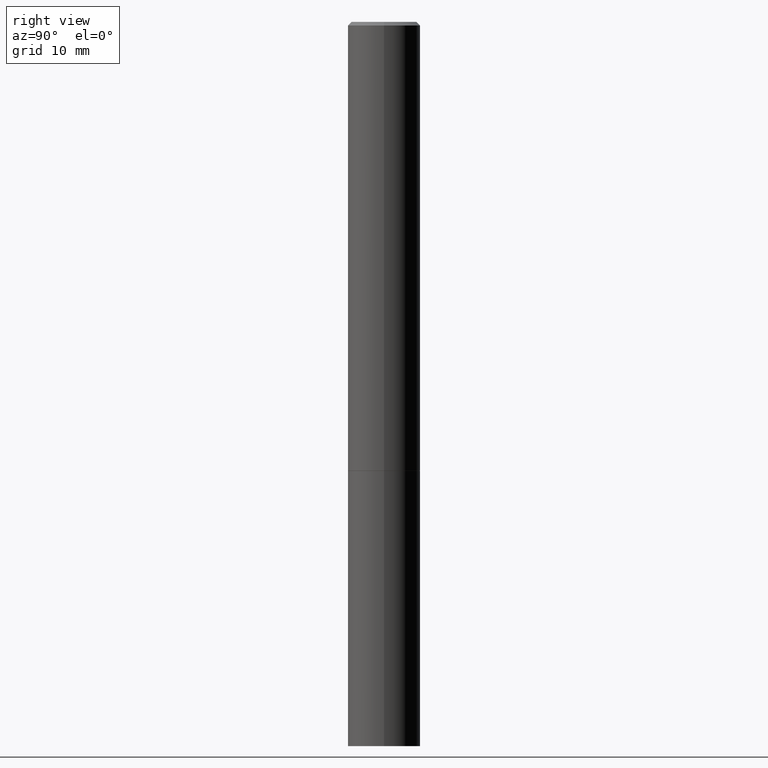
[diagram: clean part render]
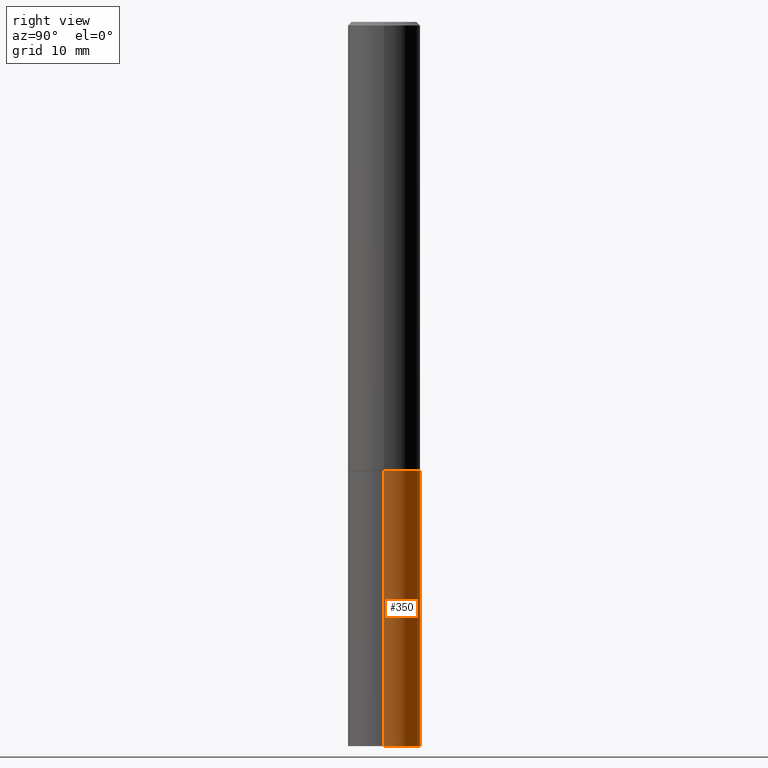
[diagram: same view with one face highlighted and labeled with its STEP entity id]
A machine part, right view. The second image highlights one B-rep face of the part: STEP entity #350.
In plain terms, the highlighted cylindrical surface (edge-blend (fillet) strip) has radius 5 mm, axis along (-0, 0, 1).
Its self-contained STEP definition (entity closure, byte-faithful):
#4 = CYLINDRICAL_SURFACE ( 'NONE', #314, 0.1968500000000000250 ) ;
#19 = EDGE_CURVE ( 'NONE', #119, #34, #57, .T. ) ;
#20 = CIRCLE ( 'NONE', #238, 0.1968500000000000250 ) ;
#28 = CARTESIAN_POINT ( 'NONE',  ( 0.1968500000000000250, -9.896953003084774574E-15, -2.440900000000000070 ) ) ;
#29 = EDGE_CURVE ( 'NONE', #119, #319, #194, .T. ) ;
#34 = VERTEX_POINT ( 'NONE', #172 ) ;
#51 = EDGE_CURVE ( 'NONE', #319, #136, #20, .T. ) ;
#54 = DIRECTION ( 'NONE',  ( 1.000000000000000000, -6.982962677686267499E-15, 0.000000000000000000 ) ) ;
#57 = CIRCLE ( 'NONE', #270, 0.1968500000000000250 ) ;
#58 = CARTESIAN_POINT ( 'NONE',  ( -0.1968500000000000250, 1.398703375343757393E-15, -9.682923725166783677E-30 ) ) ;
#82 = VECTOR ( 'NONE', #227, 39.37007874015748143 ) ;
#92 = LINE ( 'NONE', #58, #361 ) ;
#112 = CARTESIAN_POINT ( 'NONE',  ( 9.627810689950883669E-29, -1.374596203102546341E-14, -3.937000000000000277 ) ) ;
#119 = VERTEX_POINT ( 'NONE', #146 ) ;
#122 = CARTESIAN_POINT ( 'NONE',  ( -0.1968500000000000250, -9.735456040160091980E-15, -2.440900000000000070 ) ) ;
#130 = ORIENTED_EDGE ( 'NONE', *, *, #19, .T. ) ;
#136 = VERTEX_POINT ( 'NONE', #122 ) ;
#141 = CARTESIAN_POINT ( 'NONE',  ( 0.1968500000000000250, -1.374596203102541608E-15, 9.598753983154300858E-30 ) ) ;
#146 = CARTESIAN_POINT ( 'NONE',  ( 0.1968500000000000250, -1.512055823412800660E-14, -3.937000000000000277 ) ) ;
#165 = DIRECTION ( 'NONE',  ( -2.445468806185136597E-29, 3.491481338843145583E-15, 1.000000000000000000 ) ) ;
#172 = CARTESIAN_POINT ( 'NONE',  ( -0.1968500000000000250, -9.735456040160091980E-15, -3.937000000000000277 ) ) ;
#175 = EDGE_LOOP ( 'NONE', ( #130, #203, #211, #190 ) ) ;
#178 = DIRECTION ( 'NONE',  ( -2.445468806185136597E-29, 3.491481338843145583E-15, 1.000000000000000000 ) ) ;
#190 = ORIENTED_EDGE ( 'NONE', *, *, #29, .F. ) ;
#194 = LINE ( 'NONE', #141, #82 ) ;
#203 = ORIENTED_EDGE ( 'NONE', *, *, #332, .T. ) ;
#211 = ORIENTED_EDGE ( 'NONE', *, *, #51, .F. ) ;
#226 = DIRECTION ( 'NONE',  ( -2.445468806185136597E-29, 3.491481338843145583E-15, 1.000000000000000000 ) ) ;
#227 = DIRECTION ( 'NONE',  ( -2.445468806185136877E-29, 3.491481338843145188E-15, 1.000000000000000000 ) ) ;
#238 = AXIS2_PLACEMENT_3D ( 'NONE', #255, #165, #366 ) ;
#255 = CARTESIAN_POINT ( 'NONE',  ( 5.969144809017299038E-29, -8.522356799982232966E-15, -2.440900000000000070 ) ) ;
#259 = DIRECTION ( 'NONE',  ( 1.000000000000000000, -6.982962677686265922E-15, 4.876176775795935793E-29 ) ) ;
#262 = DIRECTION ( 'NONE',  ( -2.445468806185136877E-29, 3.491481338843145188E-15, 1.000000000000000000 ) ) ;
#270 = AXIS2_PLACEMENT_3D ( 'NONE', #112, #226, #54 ) ;
#307 = CARTESIAN_POINT ( 'NONE',  ( 0.000000000000000000, 0.000000000000000000, 0.000000000000000000 ) ) ;
#314 = AXIS2_PLACEMENT_3D ( 'NONE', #307, #178, #259 ) ;
#319 = VERTEX_POINT ( 'NONE', #28 ) ;
#332 = EDGE_CURVE ( 'NONE', #34, #136, #92, .T. ) ;
#346 = FACE_OUTER_BOUND ( 'NONE', #175, .T. ) ;
#350 = ADVANCED_FACE ( 'NONE', ( #346 ), #4, .T. ) ;
#361 = VECTOR ( 'NONE', #262, 39.37007874015748143 ) ;
#366 = DIRECTION ( 'NONE',  ( 1.000000000000000000, -6.982962677686262766E-15, 0.000000000000000000 ) ) ;